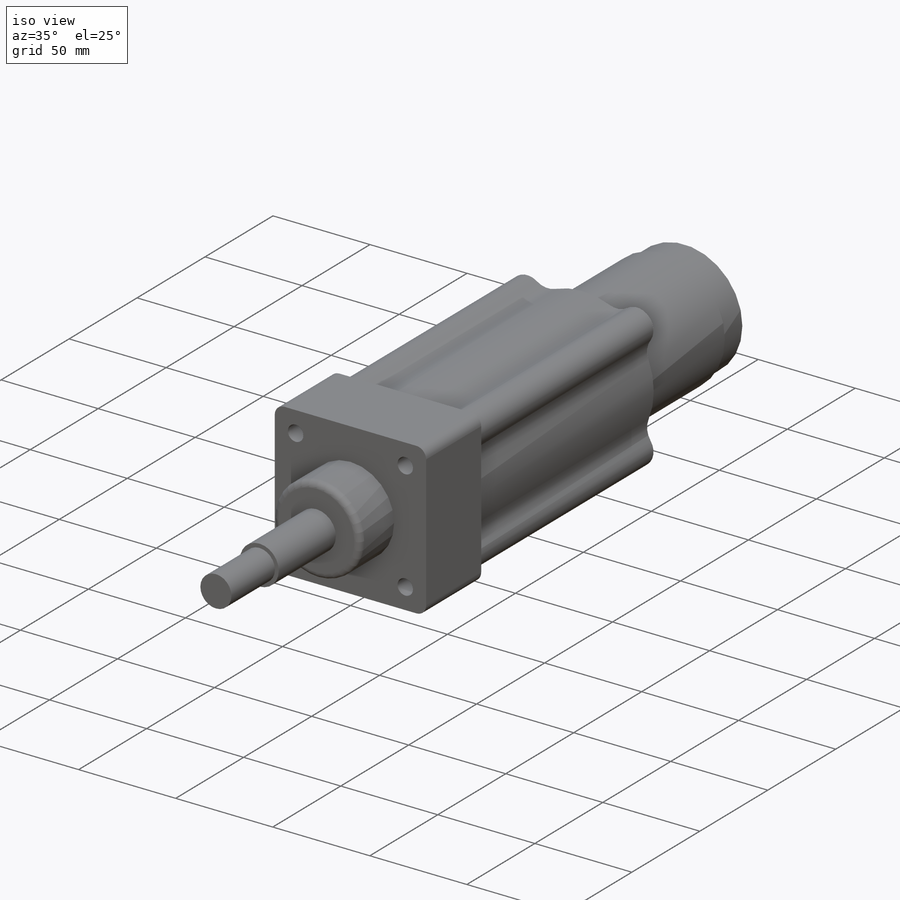
[diagram: iso view]
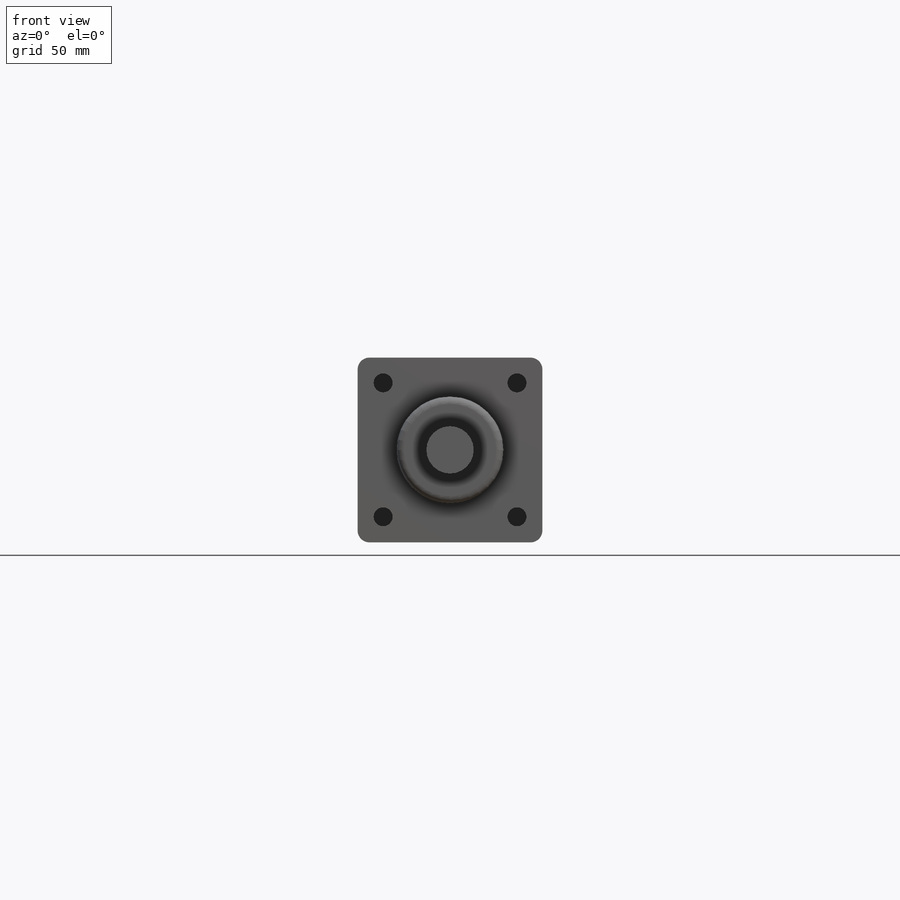
[diagram: front view]
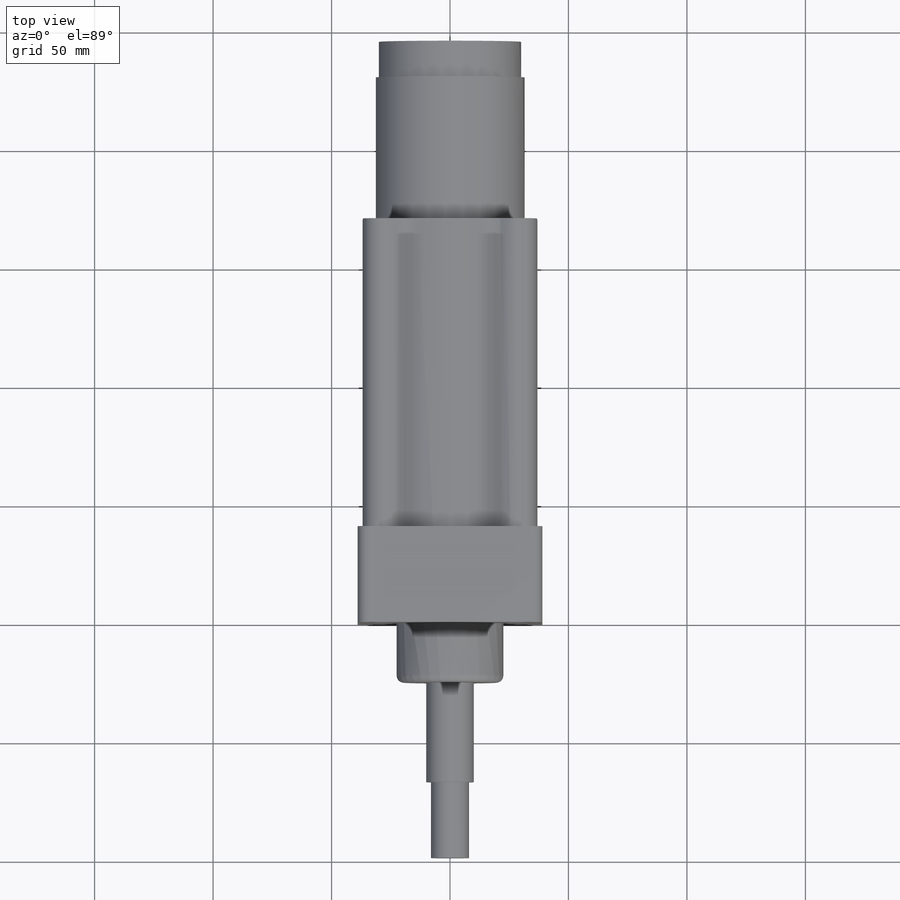
[diagram: top view]
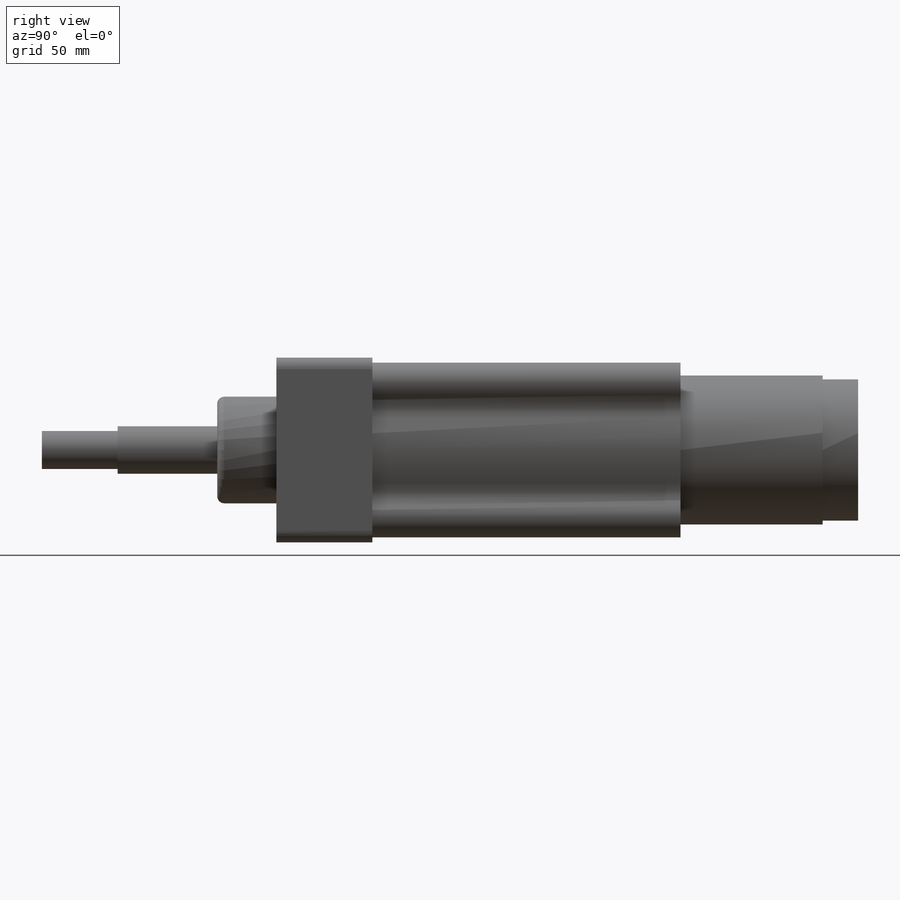
[diagram: right view]
SOLIDWORKS PART (.sldprt)
format: sldprt  version: not decoded by parser v0  size: 340,992 bytes
history: native  units: mm
features: sketch x9, extrude x8, fillet x5, plane x3, material x1, cut_extrude x1 (+10 scaffold rows collapsed)
feature tree (37):
  scaffold x10  (default folders/planes/origin — collapsed)
  material  "Material <sin especificar>"
  plane  "Alzado"
  plane  "Planta"
  plane  "Vista lateral"
  sketch  "Croquis1"  dims[D3=5.0mm D1=78.0mm D2=78.0mm]
  extrude  "Saliente-Extruir1"  Depth=40.5mm
  sketch  "Croquis2"
  extrude  "Saliente-Extruir2"  Depth=170.5mm
  sketch  "Croquis3"  dims[D1=63.0mm]
  extrude  "Saliente-Extruir3"  Depth=230.5mm
  sketch  "Croquis4"  dims[D1=60.0mm]
  extrude  "Saliente-Extruir4"  Depth=15mm
  sketch  "Croquis5"  dims[D3=17.0mm D1=56.5mm D2=56.5mm]
  extrude  "Saliente-Extruir5"  Depth=170.5mm
  fillet  "Redondeo2"  Radius=10mm
  fillet  "Redondeo3"  Radius=10mm
  fillet  "Redondeo4"  Radius=10mm
  fillet  "Redondeo5"  Radius=10mm
  sketch  "Croquis6"  dims[D3=8.0mm D1=56.5mm D2=56.5mm]
  cut_extrude  "Cortar-Extruir1"  Depth=17.5mm
  sketch  "Croquis7"  dims[D1=45.0mm]
  extrude  "Saliente-Extruir7"  Depth=25mm
  fillet  "Redondeo6"  Radius=3mm
  sketch  "Croquis8"  dims[D1=20.0mm]
  extrude  "Saliente-Extruir8"  Depth=42mm
  sketch  "Croquis9"  dims[D1=16.0mm]
  extrude  "Saliente-Extruir9"  Depth=32mm
decode coverage: 22 of 23 modeling features carry decoded parameters
note: suppression state not decoded; provenance and decode notes live in map.json
